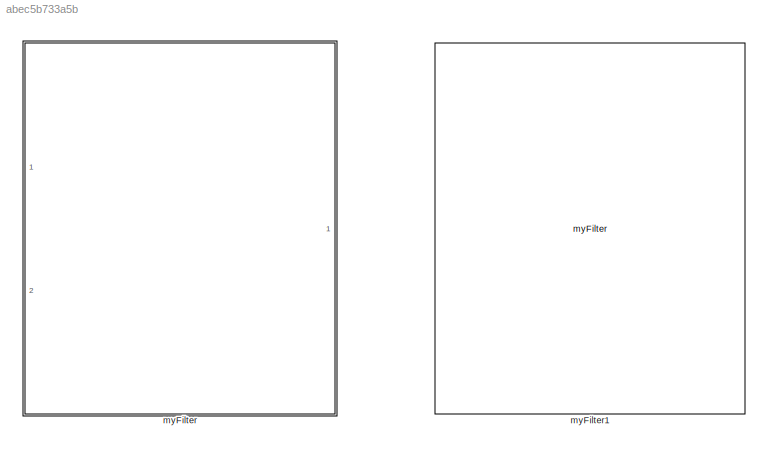
MODEL slx_abec5b733a5b
KIND library
CONFIG AbsTol = auto
CONFIG EnableMultiTasking = off
CONFIG FixedStep = auto
CONFIG MaxStep = auto
CONFIG MinStep = auto
CONFIG RelTol = 1e-3
CONFIG SampleTimeConstraint = Unconstrained
CONFIG SolverName = VariableStepAuto
CONFIG StartTime = 0.0
CONFIG StopTime = 10.0
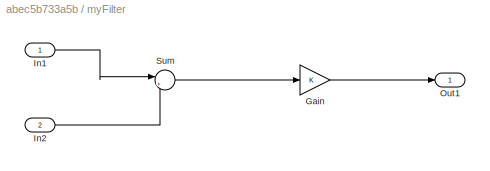
BLOCK [SubSystem] myFilter
  Ports = [2, 1]
  RequestExecContextInheritance = off
BLOCK [Gain] myFilter/Gain
BLOCK [Inport] myFilter/In1
BLOCK [Inport] myFilter/In2
  Port = 2
BLOCK [Outport] myFilter/Out1
BLOCK [Sum] myFilter/Sum
  Inputs = |++
  Ports = [2, 1]
BLOCK [Reference] myFilter1  REF=$bdroot/myFilter
  Ports = [2, 1]
  SourceBlock = $bdroot/myFilter
  SourceType = SubSystem
LINE myFilter/Gain:1 -> myFilter/Out1:1
LINE myFilter/In1:1 -> myFilter/Sum:1
LINE myFilter/In2:1 -> myFilter/Sum:2
LINE myFilter/Sum:1 -> myFilter/Gain:1
